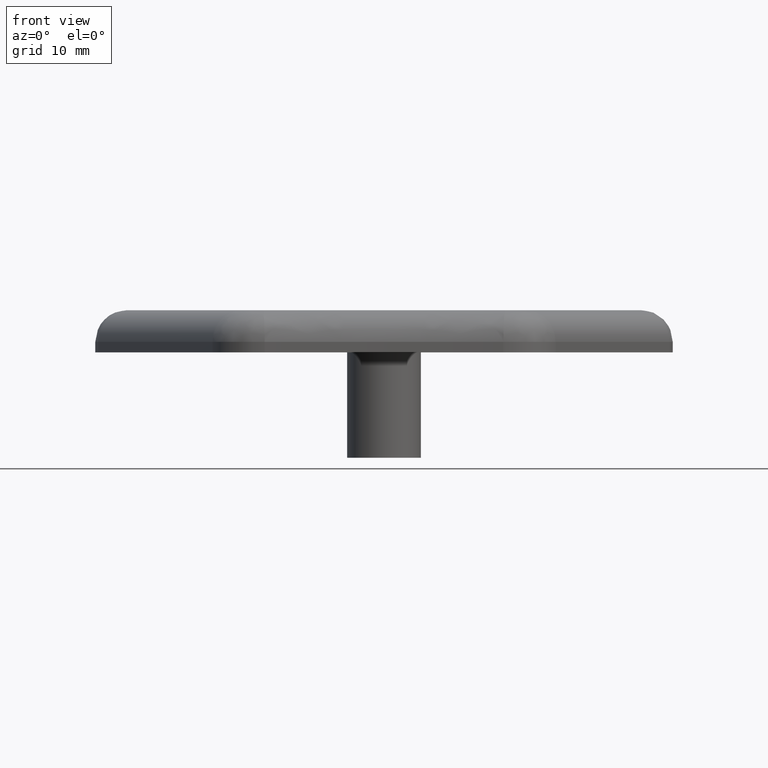
[diagram: clean part render]
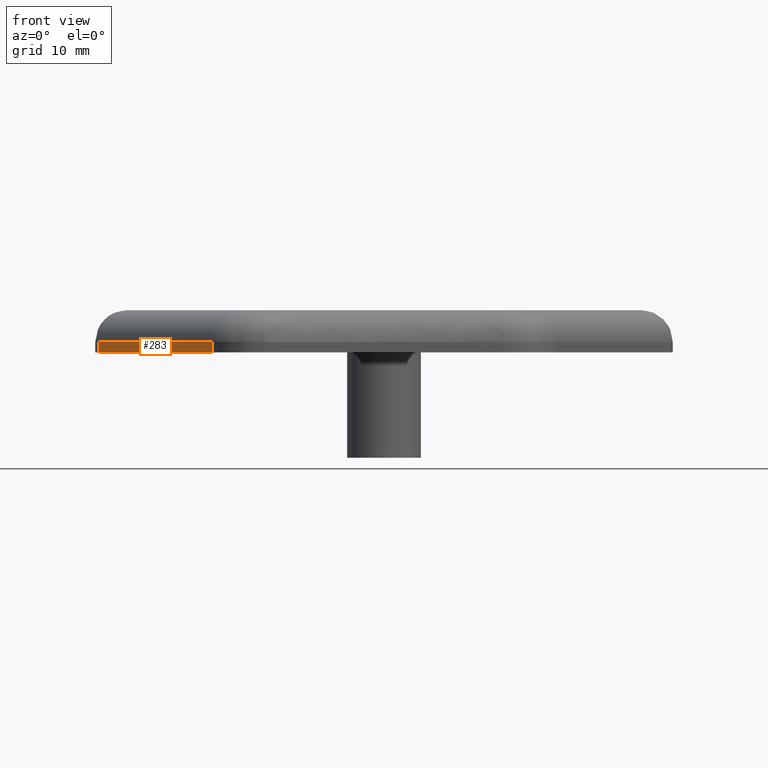
[diagram: same view with one face highlighted and labeled with its STEP entity id]
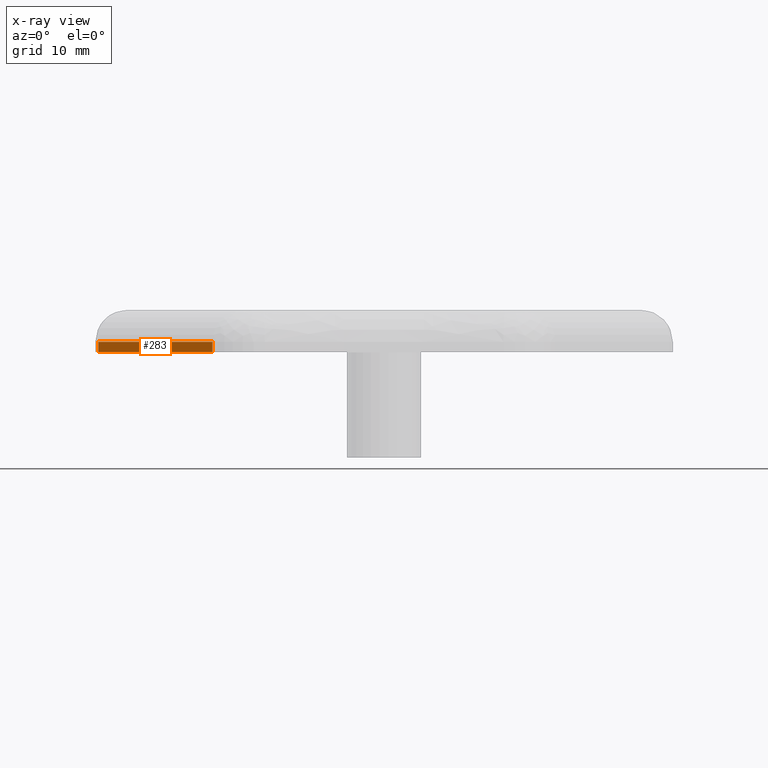
[diagram: x-ray of the same camera — body ghosted, the highlighted face saturated]
A machine part, front view. The second image highlights one B-rep face of the part: STEP entity #283.
The next image is the same camera in x-ray: the body ghosted, the highlighted face saturated — about 0% of this face is hidden behind the body in this view.
In plain terms, the highlighted planar face has unit normal (-0.9378, -0.3473, 0).
Its self-contained STEP definition (entity closure, byte-faithful):
#44=CARTESIAN_POINT('',(-16.291249118133926,-16.989179714158624,0.0));
#45=VERTEX_POINT('',#44);
#53=CARTESIAN_POINT('',(-27.114485447295216,12.234991950368126,0.0));
#54=VERTEX_POINT('',#53);
#55=CARTESIAN_POINT('',(-27.114485447295216,12.234991950368133,0.0));
#56=DIRECTION('',(0.347299373539241,-0.937754309581807,0.0));
#57=VECTOR('',#56,31.163996119153353);
#58=LINE('',#55,#57);
#59=EDGE_CURVE('',#54,#45,#58,.T.);
#240=CARTESIAN_POINT('',(-27.114485447295216,12.234991950368126,1.0));
#241=VERTEX_POINT('',#240);
#242=CARTESIAN_POINT('',(-27.114485447295216,12.234991950368126,0.0));
#243=DIRECTION('',(0.0,0.0,1.0));
#244=VECTOR('',#243,1.0);
#245=LINE('',#242,#244);
#246=EDGE_CURVE('',#54,#241,#245,.T.);
#260=CARTESIAN_POINT('',(-29.350000000000055,18.271177344451317,0.0));
#261=DIRECTION('',(-0.937754309581807,-0.347299373539241,0.0));
#262=DIRECTION('',(0.347299373539241,-0.937754309581807,0.0));
#263=AXIS2_PLACEMENT_3D('',#260,#261,#262);
#264=PLANE('',#263);
#265=ORIENTED_EDGE('',*,*,#59,.T.);
#266=CARTESIAN_POINT('',(-16.291249118133926,-16.989179714158624,1.0));
#267=VERTEX_POINT('',#266);
#268=CARTESIAN_POINT('',(-16.291249118133926,-16.989179714158624,0.0));
#269=DIRECTION('',(0.0,0.0,1.0));
#270=VECTOR('',#269,1.0);
#271=LINE('',#268,#270);
#272=EDGE_CURVE('',#45,#267,#271,.T.);
#273=ORIENTED_EDGE('',*,*,#272,.T.);
#274=CARTESIAN_POINT('',(-27.114485447295216,12.234991950368126,1.0));
#275=DIRECTION('',(0.347299373539241,-0.937754309581807,0.0));
#276=VECTOR('',#275,31.163996119153346);
#277=LINE('',#274,#276);
#278=EDGE_CURVE('',#241,#267,#277,.T.);
#279=ORIENTED_EDGE('',*,*,#278,.F.);
#280=ORIENTED_EDGE('',*,*,#246,.F.);
#281=EDGE_LOOP('',(#265,#273,#279,#280));
#282=FACE_OUTER_BOUND('',#281,.T.);
#283=ADVANCED_FACE('',(#282),#264,.T.);